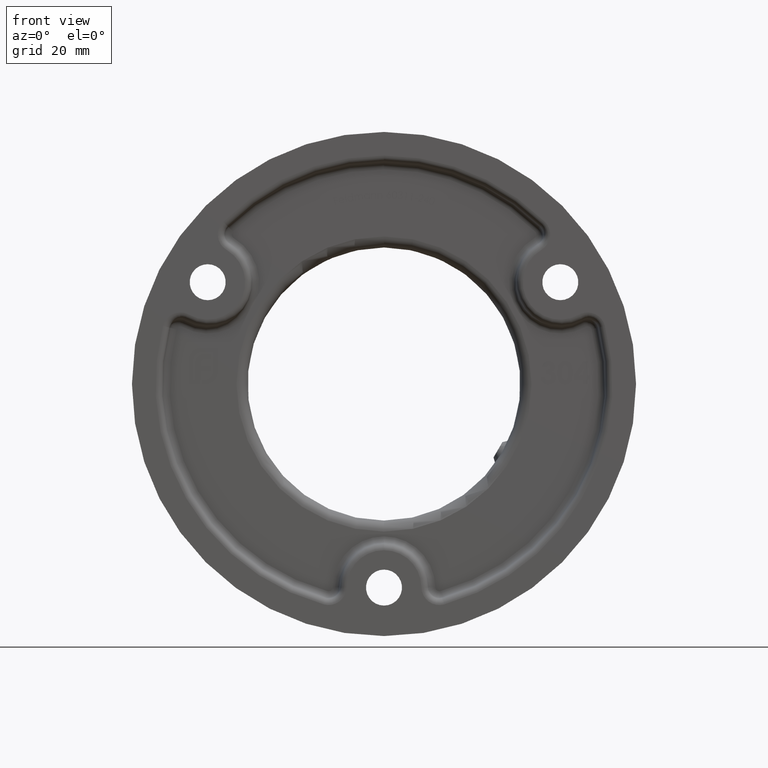
[diagram: clean part render]
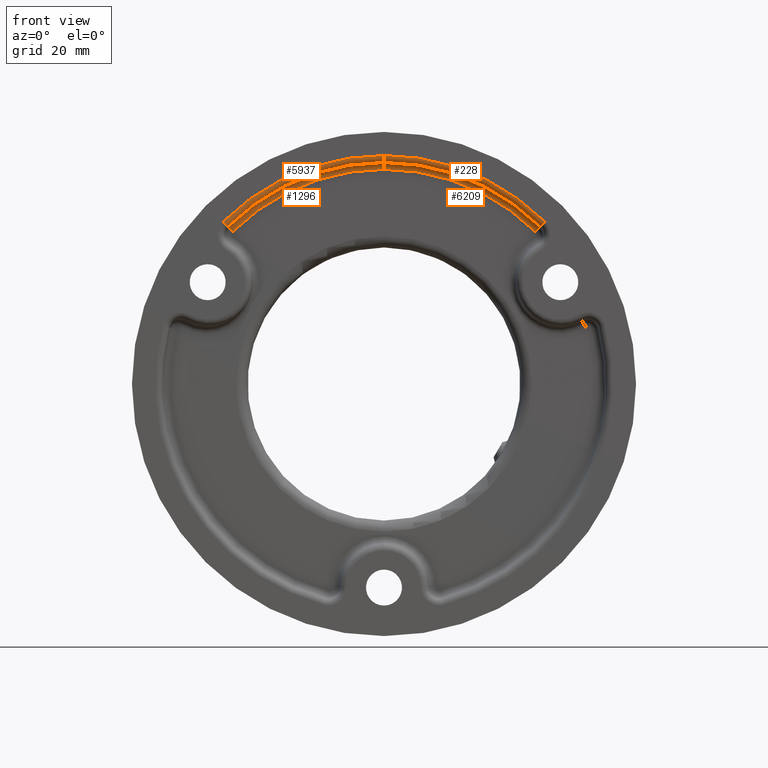
[diagram: same view with one multi-face feature highlighted, each face labeled with its STEP entity id]
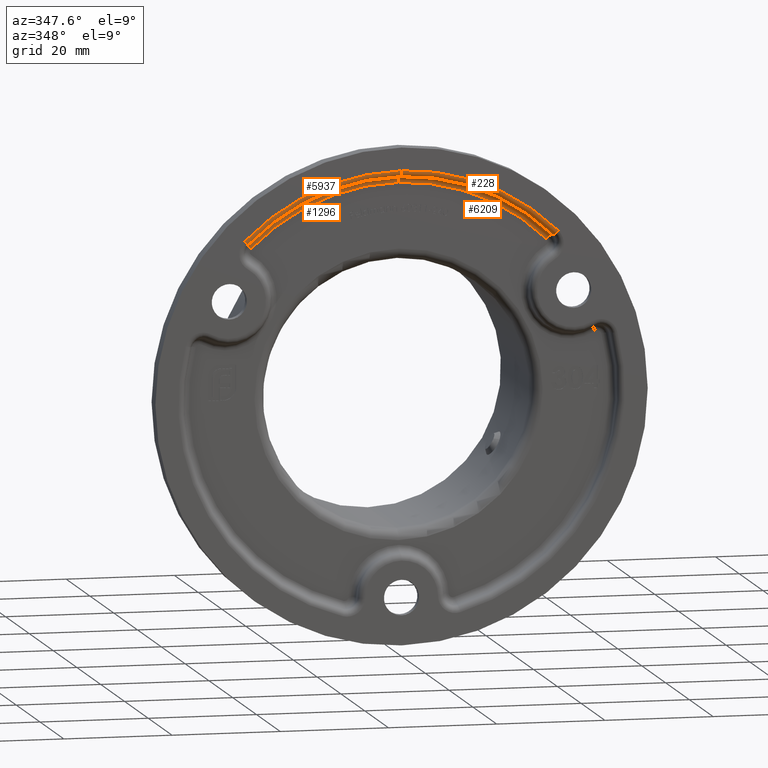
[diagram: same view with one multi-face feature highlighted, each face labeled with its STEP entity id]
A machine part, front view. The highlighted faces form ONE feature: a constant-radius fillet chain: 4 tangent blend faces with common blend radius 1.25 mm. The faces share edges in the B-rep.
A second angle (auxiliary view) of the same feature is appended — it is thin or edge-on in the first view.
Their STEP definitions:
[1] entity #228 (Torus):
#228 = ADVANCED_FACE ( 'NONE', ( #16412 ), #20940, .T. ) ;
#532 = CARTESIAN_POINT ( 'NONE',  ( 0.000000000000000000, 0.000000000000000000, 41.25000000000000000 ) ) ;
#1671 = CIRCLE ( 'NONE', #2593, 1.250000000000001110 ) ;
#2593 = AXIS2_PLACEMENT_3D ( 'NONE', #9192, #18571, #7494 ) ;
#2853 = VERTEX_POINT ( 'NONE', #532 ) ;
#3002 = EDGE_LOOP ( 'NONE', ( #13403, #19112, #14861, #11891 ) ) ;
#3493 = DIRECTION ( 'NONE',  ( 0.000000000000000000, 0.000000000000000000, 1.000000000000000000 ) ) ;
#4366 = CARTESIAN_POINT ( 'NONE',  ( 28.15716757342467247, 1.250000000000000000, 28.41080629341734110 ) ) ;
#4820 = EDGE_CURVE ( 'NONE', #19723, #18347, #18984, .T. ) ;
#4851 = CARTESIAN_POINT ( 'NONE',  ( 0.000000000000000000, 1.250000000000000000, 0.000000000000000000 ) ) ;
#5069 = DIRECTION ( 'NONE',  ( 8.881784197001252323E-16, 0.000000000000000000, 1.000000000000000000 ) ) ;
#6942 = DIRECTION ( 'NONE',  ( -0.7039291893356173224, 0.000000000000000000, -0.7102701573354329723 ) ) ;
#6973 = AXIS2_PLACEMENT_3D ( 'NONE', #14749, #11696, #5069 ) ;
#7494 = DIRECTION ( 'NONE',  ( 0.000000000000000000, 0.000000000000000000, 1.000000000000000000 ) ) ;
#9023 = EDGE_CURVE ( 'NONE', #10031, #19723, #16373, .T. ) ;
#9192 = CARTESIAN_POINT ( 'NONE',  ( 0.000000000000000000, 1.250000000000000000, 41.25000000000000000 ) ) ;
#9921 = CARTESIAN_POINT ( 'NONE',  ( 0.000000000000000000, 0.000000000000000000, 0.000000000000000000 ) ) ;
#10031 = VERTEX_POINT ( 'NONE', #15020 ) ;
#10170 = AXIS2_PLACEMENT_3D ( 'NONE', #9921, #11537, #3493 ) ;
#10199 = AXIS2_PLACEMENT_3D ( 'NONE', #4851, #12888, #17697 ) ;
#11537 = DIRECTION ( 'NONE',  ( 0.000000000000000000, 1.000000000000000000, 0.000000000000000000 ) ) ;
#11696 = DIRECTION ( 'NONE',  ( -0.000000000000000000, -1.000000000000000000, -0.000000000000000000 ) ) ;
#11891 = ORIENTED_EDGE ( 'NONE', *, *, #13000, .F. ) ;
#12514 = CIRCLE ( 'NONE', #10170, 41.25000000000000000 ) ;
#12888 = DIRECTION ( 'NONE',  ( 0.000000000000000000, 1.000000000000000000, 0.000000000000000000 ) ) ;
#13000 = EDGE_CURVE ( 'NONE', #2853, #10031, #12514, .T. ) ;
#13196 = EDGE_CURVE ( 'NONE', #18347, #2853, #1671, .T. ) ;
#13403 = ORIENTED_EDGE ( 'NONE', *, *, #13196, .F. ) ;
#13497 = CARTESIAN_POINT ( 'NONE',  ( 29.03707906009419304, 1.250000000000000000, 29.29864399008663511 ) ) ;
#14749 = CARTESIAN_POINT ( 'NONE',  ( 0.000000000000000000, 1.250000000000000000, 0.000000000000000000 ) ) ;
#14861 = ORIENTED_EDGE ( 'NONE', *, *, #9023, .F. ) ;
#15020 = CARTESIAN_POINT ( 'NONE',  ( 29.03707906009419304, 0.000000000000000000, 29.29864399008663511 ) ) ;
#16373 = CIRCLE ( 'NONE', #20664, 1.249999999999999334 ) ;
#16412 = FACE_OUTER_BOUND ( 'NONE', #3002, .T. ) ;
#17697 = DIRECTION ( 'NONE',  ( 0.000000000000000000, 0.000000000000000000, 1.000000000000000000 ) ) ;
#18347 = VERTEX_POINT ( 'NONE', #20562 ) ;
#18571 = DIRECTION ( 'NONE',  ( -1.000000000000000000, 0.000000000000000000, 0.000000000000000000 ) ) ;
#18984 = CIRCLE ( 'NONE', #6973, 40.00000000000000000 ) ;
#19112 = ORIENTED_EDGE ( 'NONE', *, *, #4820, .F. ) ;
#19723 = VERTEX_POINT ( 'NONE', #4366 ) ;
#19974 = DIRECTION ( 'NONE',  ( 0.7102701573354328612, 0.000000000000000000, -0.7039291893356174334 ) ) ;
#20562 = CARTESIAN_POINT ( 'NONE',  ( 0.000000000000000000, 1.250000000000000000, 40.00000000000000000 ) ) ;
#20664 = AXIS2_PLACEMENT_3D ( 'NONE', #13497, #19974, #6942 ) ;
#20940 = TOROIDAL_SURFACE ( 'NONE', #10199, 41.25000000000000000, 1.250000000000000000 ) ;
[2] entity #5937 (Torus):
#59 = CARTESIAN_POINT ( 'NONE',  ( -28.15716757342426391, 1.250000000000000000, 28.41080629341774966 ) ) ;
#532 = CARTESIAN_POINT ( 'NONE',  ( 0.000000000000000000, 0.000000000000000000, 41.25000000000000000 ) ) ;
#540 = CARTESIAN_POINT ( 'NONE',  ( -29.03707906009376316, 0.000000000000000000, 29.29864399008706144 ) ) ;
#983 = VERTEX_POINT ( 'NONE', #59 ) ;
#1671 = CIRCLE ( 'NONE', #2593, 1.250000000000001110 ) ;
#2320 = DIRECTION ( 'NONE',  ( 0.7102701573354494036, 0.000000000000000000, 0.7039291893356006691 ) ) ;
#2354 = DIRECTION ( 'NONE',  ( 0.000000000000000000, 0.000000000000000000, 1.000000000000000000 ) ) ;
#2593 = AXIS2_PLACEMENT_3D ( 'NONE', #9192, #18571, #7494 ) ;
#2853 = VERTEX_POINT ( 'NONE', #532 ) ;
#4015 = DIRECTION ( 'NONE',  ( 0.7039291893356005581, 0.000000000000000000, -0.7102701573354494036 ) ) ;
#4371 = DIRECTION ( 'NONE',  ( 0.000000000000000000, 0.000000000000000000, 1.000000000000000000 ) ) ;
#4513 = EDGE_LOOP ( 'NONE', ( #14946, #16421, #11882, #16480 ) ) ;
#5937 = ADVANCED_FACE ( 'NONE', ( #17976 ), #9137, .T. ) ;
#6865 = CIRCLE ( 'NONE', #15735, 41.25000000000000000 ) ;
#7494 = DIRECTION ( 'NONE',  ( 0.000000000000000000, 0.000000000000000000, 1.000000000000000000 ) ) ;
#8160 = VERTEX_POINT ( 'NONE', #540 ) ;
#8754 = CIRCLE ( 'NONE', #19624, 1.249999999999999556 ) ;
#8985 = DIRECTION ( 'NONE',  ( 0.000000000000000000, 1.000000000000000000, 0.000000000000000000 ) ) ;
#9137 = TOROIDAL_SURFACE ( 'NONE', #11348, 41.25000000000000000, 1.250000000000000000 ) ;
#9192 = CARTESIAN_POINT ( 'NONE',  ( 0.000000000000000000, 1.250000000000000000, 41.25000000000000000 ) ) ;
#9237 = CARTESIAN_POINT ( 'NONE',  ( 0.000000000000000000, 1.250000000000000000, 0.000000000000000000 ) ) ;
#11246 = EDGE_CURVE ( 'NONE', #8160, #983, #8754, .T. ) ;
#11348 = AXIS2_PLACEMENT_3D ( 'NONE', #9237, #14110, #4371 ) ;
#11882 = ORIENTED_EDGE ( 'NONE', *, *, #16039, .F. ) ;
#12007 = CARTESIAN_POINT ( 'NONE',  ( 0.000000000000000000, 0.000000000000000000, 0.000000000000000000 ) ) ;
#12519 = DIRECTION ( 'NONE',  ( 0.000000000000000000, 0.000000000000000000, 1.000000000000000000 ) ) ;
#12851 = DIRECTION ( 'NONE',  ( -0.000000000000000000, -1.000000000000000000, -0.000000000000000000 ) ) ;
#13136 = CIRCLE ( 'NONE', #13439, 40.00000000000000000 ) ;
#13196 = EDGE_CURVE ( 'NONE', #18347, #2853, #1671, .T. ) ;
#13439 = AXIS2_PLACEMENT_3D ( 'NONE', #18465, #12851, #12519 ) ;
#14110 = DIRECTION ( 'NONE',  ( 0.000000000000000000, 1.000000000000000000, 0.000000000000000000 ) ) ;
#14946 = ORIENTED_EDGE ( 'NONE', *, *, #17278, .F. ) ;
#15251 = CARTESIAN_POINT ( 'NONE',  ( -29.03707906009376671, 1.250000000000000000, 29.29864399008706499 ) ) ;
#15735 = AXIS2_PLACEMENT_3D ( 'NONE', #12007, #8985, #2354 ) ;
#16039 = EDGE_CURVE ( 'NONE', #8160, #2853, #6865, .T. ) ;
#16421 = ORIENTED_EDGE ( 'NONE', *, *, #13196, .T. ) ;
#16480 = ORIENTED_EDGE ( 'NONE', *, *, #11246, .T. ) ;
#17278 = EDGE_CURVE ( 'NONE', #18347, #983, #13136, .T. ) ;
#17976 = FACE_OUTER_BOUND ( 'NONE', #4513, .T. ) ;
#18347 = VERTEX_POINT ( 'NONE', #20562 ) ;
#18465 = CARTESIAN_POINT ( 'NONE',  ( 0.000000000000000000, 1.250000000000000000, 0.000000000000000000 ) ) ;
#18571 = DIRECTION ( 'NONE',  ( -1.000000000000000000, 0.000000000000000000, 0.000000000000000000 ) ) ;
#19624 = AXIS2_PLACEMENT_3D ( 'NONE', #15251, #2320, #4015 ) ;
#20562 = CARTESIAN_POINT ( 'NONE',  ( 0.000000000000000000, 1.250000000000000000, 40.00000000000000000 ) ) ;
[3] entity #1296 (Torus):
#59 = CARTESIAN_POINT ( 'NONE',  ( -28.15716757342426391, 1.250000000000000000, 28.41080629341774966 ) ) ;
#518 = CARTESIAN_POINT ( 'NONE',  ( 0.000000000000000000, 1.250000000000000000, 0.000000000000000000 ) ) ;
#896 = CIRCLE ( 'NONE', #3678, 1.249999999999999556 ) ;
#983 = VERTEX_POINT ( 'NONE', #59 ) ;
#1296 = ADVANCED_FACE ( 'NONE', ( #12324 ), #5037, .F. ) ;
#3176 = VERTEX_POINT ( 'NONE', #15032 ) ;
#3428 = AXIS2_PLACEMENT_3D ( 'NONE', #518, #8514, #7028 ) ;
#3525 = CIRCLE ( 'NONE', #9266, 1.250000000000001110 ) ;
#3678 = AXIS2_PLACEMENT_3D ( 'NONE', #4610, #20605, #6154 ) ;
#4610 = CARTESIAN_POINT ( 'NONE',  ( -27.27725608675476465, 1.250000000000000000, 27.52296859674844143 ) ) ;
#5037 = TOROIDAL_SURFACE ( 'NONE', #3428, 38.75000000000000000, 1.250000000000000000 ) ;
#5206 = CIRCLE ( 'NONE', #8012, 38.75000000000000000 ) ;
#5404 = EDGE_LOOP ( 'NONE', ( #14067, #8096, #6530, #15434 ) ) ;
#5975 = DIRECTION ( 'NONE',  ( 0.000000000000000000, 0.000000000000000000, 1.000000000000000000 ) ) ;
#6154 = DIRECTION ( 'NONE',  ( -0.7039291893356005581, 0.000000000000000000, 0.7102701573354494036 ) ) ;
#6530 = ORIENTED_EDGE ( 'NONE', *, *, #13358, .T. ) ;
#7028 = DIRECTION ( 'NONE',  ( 0.000000000000000000, 0.000000000000000000, 1.000000000000000000 ) ) ;
#7640 = DIRECTION ( 'NONE',  ( -1.000000000000000000, 0.000000000000000000, 0.000000000000000000 ) ) ;
#8012 = AXIS2_PLACEMENT_3D ( 'NONE', #17341, #12396, #5975 ) ;
#8096 = ORIENTED_EDGE ( 'NONE', *, *, #17278, .T. ) ;
#8514 = DIRECTION ( 'NONE',  ( -0.000000000000000000, 1.000000000000000000, -0.000000000000000000 ) ) ;
#8548 = CARTESIAN_POINT ( 'NONE',  ( 0.000000000000000000, 2.500000000000000000, 38.75000000000000000 ) ) ;
#9266 = AXIS2_PLACEMENT_3D ( 'NONE', #20611, #7640, #10960 ) ;
#10960 = DIRECTION ( 'NONE',  ( 0.000000000000000000, 0.000000000000000000, 1.000000000000000000 ) ) ;
#12324 = FACE_OUTER_BOUND ( 'NONE', #5404, .T. ) ;
#12396 = DIRECTION ( 'NONE',  ( 0.000000000000000000, -1.000000000000000000, 0.000000000000000000 ) ) ;
#12519 = DIRECTION ( 'NONE',  ( 0.000000000000000000, 0.000000000000000000, 1.000000000000000000 ) ) ;
#12851 = DIRECTION ( 'NONE',  ( -0.000000000000000000, -1.000000000000000000, -0.000000000000000000 ) ) ;
#13136 = CIRCLE ( 'NONE', #13439, 40.00000000000000000 ) ;
#13358 = EDGE_CURVE ( 'NONE', #983, #3176, #896, .T. ) ;
#13439 = AXIS2_PLACEMENT_3D ( 'NONE', #18465, #12851, #12519 ) ;
#13721 = EDGE_CURVE ( 'NONE', #17725, #3176, #5206, .T. ) ;
#14067 = ORIENTED_EDGE ( 'NONE', *, *, #18917, .F. ) ;
#15032 = CARTESIAN_POINT ( 'NONE',  ( -27.27725608675476465, 2.500000000000000000, 27.52296859674844143 ) ) ;
#15434 = ORIENTED_EDGE ( 'NONE', *, *, #13721, .F. ) ;
#17278 = EDGE_CURVE ( 'NONE', #18347, #983, #13136, .T. ) ;
#17341 = CARTESIAN_POINT ( 'NONE',  ( 0.000000000000000000, 2.500000000000000000, 0.000000000000000000 ) ) ;
#17725 = VERTEX_POINT ( 'NONE', #8548 ) ;
#18347 = VERTEX_POINT ( 'NONE', #20562 ) ;
#18465 = CARTESIAN_POINT ( 'NONE',  ( 0.000000000000000000, 1.250000000000000000, 0.000000000000000000 ) ) ;
#18917 = EDGE_CURVE ( 'NONE', #18347, #17725, #3525, .T. ) ;
#20562 = CARTESIAN_POINT ( 'NONE',  ( 0.000000000000000000, 1.250000000000000000, 40.00000000000000000 ) ) ;
#20605 = DIRECTION ( 'NONE',  ( -0.7102701573354494036, 0.000000000000000000, -0.7039291893356006691 ) ) ;
#20611 = CARTESIAN_POINT ( 'NONE',  ( 0.000000000000000000, 1.250000000000000000, 38.75000000000000000 ) ) ;
[4] entity #6209 (Torus):
#2024 = ORIENTED_EDGE ( 'NONE', *, *, #4820, .T. ) ;
#2037 = ORIENTED_EDGE ( 'NONE', *, *, #14442, .F. ) ;
#3229 = CARTESIAN_POINT ( 'NONE',  ( 27.27725608675515190, 1.250000000000000000, 27.52296859674805063 ) ) ;
#3418 = CIRCLE ( 'NONE', #18027, 38.75000000000000000 ) ;
#3525 = CIRCLE ( 'NONE', #9266, 1.250000000000001110 ) ;
#3613 = CARTESIAN_POINT ( 'NONE',  ( 0.000000000000000000, 1.250000000000000000, 0.000000000000000000 ) ) ;
#4366 = CARTESIAN_POINT ( 'NONE',  ( 28.15716757342467247, 1.250000000000000000, 28.41080629341734110 ) ) ;
#4820 = EDGE_CURVE ( 'NONE', #19723, #18347, #18984, .T. ) ;
#5069 = DIRECTION ( 'NONE',  ( 8.881784197001252323E-16, 0.000000000000000000, 1.000000000000000000 ) ) ;
#5239 = DIRECTION ( 'NONE',  ( -0.000000000000000000, 1.000000000000000000, -0.000000000000000000 ) ) ;
#5579 = FACE_OUTER_BOUND ( 'NONE', #18216, .T. ) ;
#6209 = ADVANCED_FACE ( 'NONE', ( #5579 ), #9121, .F. ) ;
#6474 = DIRECTION ( 'NONE',  ( -0.7102701573354328612, -1.759972167951635068E-17, 0.7039291893356174334 ) ) ;
#6973 = AXIS2_PLACEMENT_3D ( 'NONE', #14749, #11696, #5069 ) ;
#7640 = DIRECTION ( 'NONE',  ( -1.000000000000000000, 0.000000000000000000, 0.000000000000000000 ) ) ;
#8548 = CARTESIAN_POINT ( 'NONE',  ( 0.000000000000000000, 2.500000000000000000, 38.75000000000000000 ) ) ;
#8550 = EDGE_CURVE ( 'NONE', #19723, #13817, #10839, .T. ) ;
#8640 = ORIENTED_EDGE ( 'NONE', *, *, #8550, .F. ) ;
#9121 = TOROIDAL_SURFACE ( 'NONE', #10260, 38.75000000000000000, 1.250000000000000000 ) ;
#9266 = AXIS2_PLACEMENT_3D ( 'NONE', #20611, #7640, #10960 ) ;
#9997 = DIRECTION ( 'NONE',  ( 0.7039291893356173224, 0.000000000000000000, 0.7102701573354329723 ) ) ;
#10260 = AXIS2_PLACEMENT_3D ( 'NONE', #3613, #5239, #16509 ) ;
#10839 = CIRCLE ( 'NONE', #12286, 1.249999999999999334 ) ;
#10960 = DIRECTION ( 'NONE',  ( 0.000000000000000000, 0.000000000000000000, 1.000000000000000000 ) ) ;
#11696 = DIRECTION ( 'NONE',  ( -0.000000000000000000, -1.000000000000000000, -0.000000000000000000 ) ) ;
#12286 = AXIS2_PLACEMENT_3D ( 'NONE', #3229, #6474, #9997 ) ;
#13817 = VERTEX_POINT ( 'NONE', #19240 ) ;
#14442 = EDGE_CURVE ( 'NONE', #13817, #17725, #3418, .T. ) ;
#14749 = CARTESIAN_POINT ( 'NONE',  ( 0.000000000000000000, 1.250000000000000000, 0.000000000000000000 ) ) ;
#16509 = DIRECTION ( 'NONE',  ( 0.000000000000000000, 0.000000000000000000, 1.000000000000000000 ) ) ;
#17373 = DIRECTION ( 'NONE',  ( 0.000000000000000000, -1.000000000000000000, 0.000000000000000000 ) ) ;
#17725 = VERTEX_POINT ( 'NONE', #8548 ) ;
#18027 = AXIS2_PLACEMENT_3D ( 'NONE', #18914, #17373, #20536 ) ;
#18216 = EDGE_LOOP ( 'NONE', ( #2024, #19952, #2037, #8640 ) ) ;
#18347 = VERTEX_POINT ( 'NONE', #20562 ) ;
#18914 = CARTESIAN_POINT ( 'NONE',  ( 0.000000000000000000, 2.500000000000000000, 0.000000000000000000 ) ) ;
#18917 = EDGE_CURVE ( 'NONE', #18347, #17725, #3525, .T. ) ;
#18984 = CIRCLE ( 'NONE', #6973, 40.00000000000000000 ) ;
#19240 = CARTESIAN_POINT ( 'NONE',  ( 27.27725608675514835, 2.500000000000000000, 27.52296859674804708 ) ) ;
#19723 = VERTEX_POINT ( 'NONE', #4366 ) ;
#19952 = ORIENTED_EDGE ( 'NONE', *, *, #18917, .T. ) ;
#20536 = DIRECTION ( 'NONE',  ( 8.881784197001252323E-16, 0.000000000000000000, 1.000000000000000000 ) ) ;
#20562 = CARTESIAN_POINT ( 'NONE',  ( 0.000000000000000000, 1.250000000000000000, 40.00000000000000000 ) ) ;
#20611 = CARTESIAN_POINT ( 'NONE',  ( 0.000000000000000000, 1.250000000000000000, 38.75000000000000000 ) ) ;